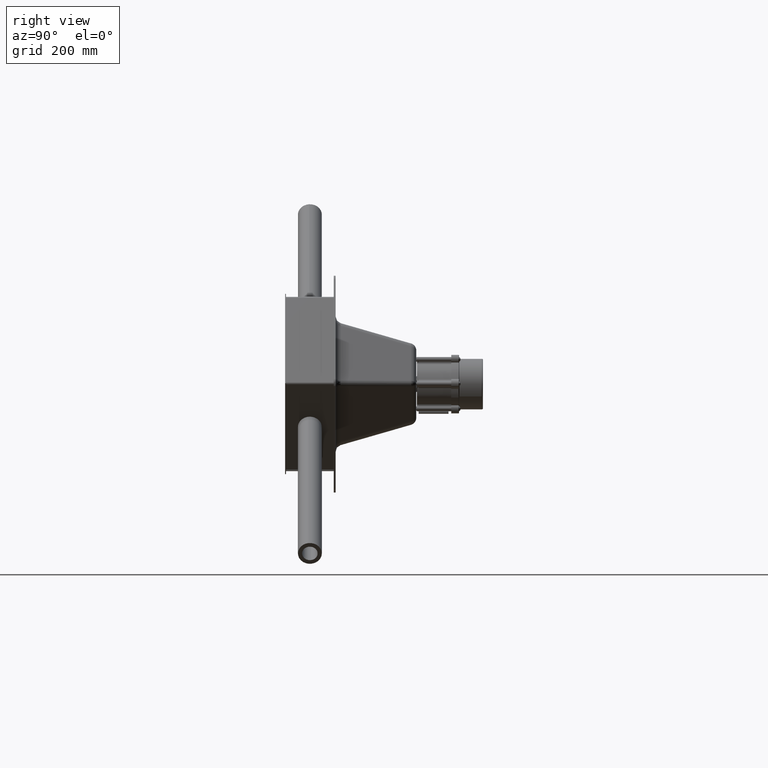
[diagram: clean part render]
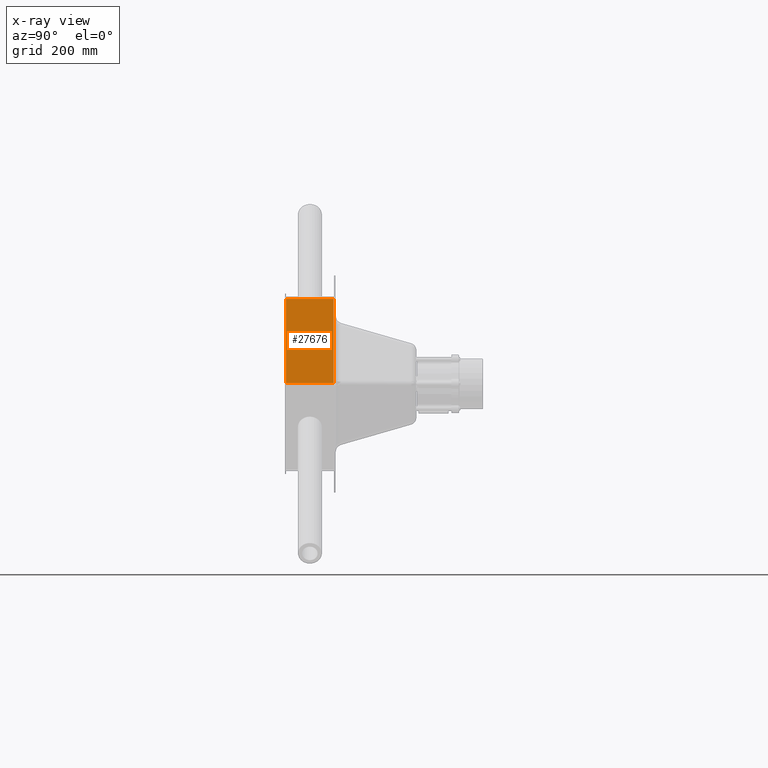
[diagram: x-ray — body ghosted, one internal face saturated and labeled with its STEP entity id]
A machine part, right view, then the same camera in x-ray: the body is ghosted and one INTERNAL B-rep face — a face not visible from any outside direction — is saturated and labeled: STEP entity #27676.
In plain terms, the highlighted planar face has unit normal (-0.8632, -0, -0.5049).
Its self-contained STEP definition (entity closure, byte-faithful):
#94 = ORIENTED_EDGE ( 'NONE', *, *, #18659, .T. ) ;
#845 = ORIENTED_EDGE ( 'NONE', *, *, #14472, .T. ) ;
#1621 = CARTESIAN_POINT ( 'NONE',  ( 214.1150502004594784, 39.99999999999997868, 0.3683000000000991037 ) ) ;
#2494 = DIRECTION ( 'NONE',  ( -2.397623950702040478E-17, -1.000000000000000000, -8.502476337541312578E-18 ) ) ;
#2505 = LINE ( 'NONE', #30791, #15520 ) ;
#2723 = CARTESIAN_POINT ( 'NONE',  ( 297.3608550136773943, 40.00000000000007105, -143.8176634534557650 ) ) ;
#4074 = DIRECTION ( 'NONE',  ( 0.8660254037844399289, 2.501527066907039738E-17, 0.4999999999999977240 ) ) ;
#4170 = PLANE ( 'NONE',  #31034 ) ;
#4406 = CARTESIAN_POINT ( 'NONE',  ( 132.5734931178204761, -40.00000000000000711, 141.6024197954096735 ) ) ;
#4537 = VECTOR ( 'NONE', #22006, 1000.000000000000000 ) ;
#5365 = DIRECTION ( 'NONE',  ( -0.4999999999999977240, -1.307864665938909412E-16, 0.8660254037844398178 ) ) ;
#6647 = ORIENTED_EDGE ( 'NONE', *, *, #17950, .T. ) ;
#6798 = DIRECTION ( 'NONE',  ( 0.4999999999999977240, 4.624759250123283875E-18, -0.8660254037844399289 ) ) ;
#7446 = VERTEX_POINT ( 'NONE', #4406 ) ;
#9324 = CARTESIAN_POINT ( 'NONE',  ( 214.1150502004594784, -39.99999999999999289, 0.3683000000000991037 ) ) ;
#9959 = CARTESIAN_POINT ( 'NONE',  ( 297.3608550136773943, -39.99999999999991473, -143.8176634534557650 ) ) ;
#10958 = LINE ( 'NONE', #2723, #16964 ) ;
#12065 = EDGE_LOOP ( 'NONE', ( #22736, #845, #6647, #94 ) ) ;
#12690 = VERTEX_POINT ( 'NONE', #32577 ) ;
#13312 = VERTEX_POINT ( 'NONE', #1621 ) ;
#14472 = EDGE_CURVE ( 'NONE', #13312, #12690, #10958, .T. ) ;
#15520 = VECTOR ( 'NONE', #2494, 1000.000000000000000 ) ;
#16840 = CARTESIAN_POINT ( 'NONE',  ( 132.5734931178205045, 3.469446951953614189E-15, 141.6024197954097303 ) ) ;
#16964 = VECTOR ( 'NONE', #5365, 1000.000000000000114 ) ;
#17070 = CARTESIAN_POINT ( 'NONE',  ( 107.9096489655195796, 6.938893903907228378E-15, 184.3214509771556209 ) ) ;
#17950 = EDGE_CURVE ( 'NONE', #12690, #7446, #32042, .T. ) ;
#18659 = EDGE_CURVE ( 'NONE', #7446, #27078, #21942, .T. ) ;
#21127 = VECTOR ( 'NONE', #25380, 1000.000000000000114 ) ;
#21942 = LINE ( 'NONE', #9959, #21127 ) ;
#22006 = DIRECTION ( 'NONE',  ( -2.397623950702040478E-17, -1.000000000000000000, -8.502476337541312578E-18 ) ) ;
#22736 = ORIENTED_EDGE ( 'NONE', *, *, #25630, .F. ) ;
#25380 = DIRECTION ( 'NONE',  ( 0.4999999999999977240, 1.307864665938909412E-16, -0.8660254037844398178 ) ) ;
#25630 = EDGE_CURVE ( 'NONE', #13312, #27078, #2505, .T. ) ;
#27078 = VERTEX_POINT ( 'NONE', #9324 ) ;
#27676 = ADVANCED_FACE ( 'NONE', ( #33570 ), #4170, .T. ) ;
#30791 = CARTESIAN_POINT ( 'NONE',  ( 214.1150502004595921, 0.0000000000000000000, 0.3683000000000713481 ) ) ;
#31034 = AXIS2_PLACEMENT_3D ( 'NONE', #17070, #4074, #6798 ) ;
#32042 = LINE ( 'NONE', #16840, #4537 ) ;
#32577 = CARTESIAN_POINT ( 'NONE',  ( 132.5734931178204192, 40.00000000000001421, 141.6024197954097303 ) ) ;
#33570 = FACE_OUTER_BOUND ( 'NONE', #12065, .T. ) ;